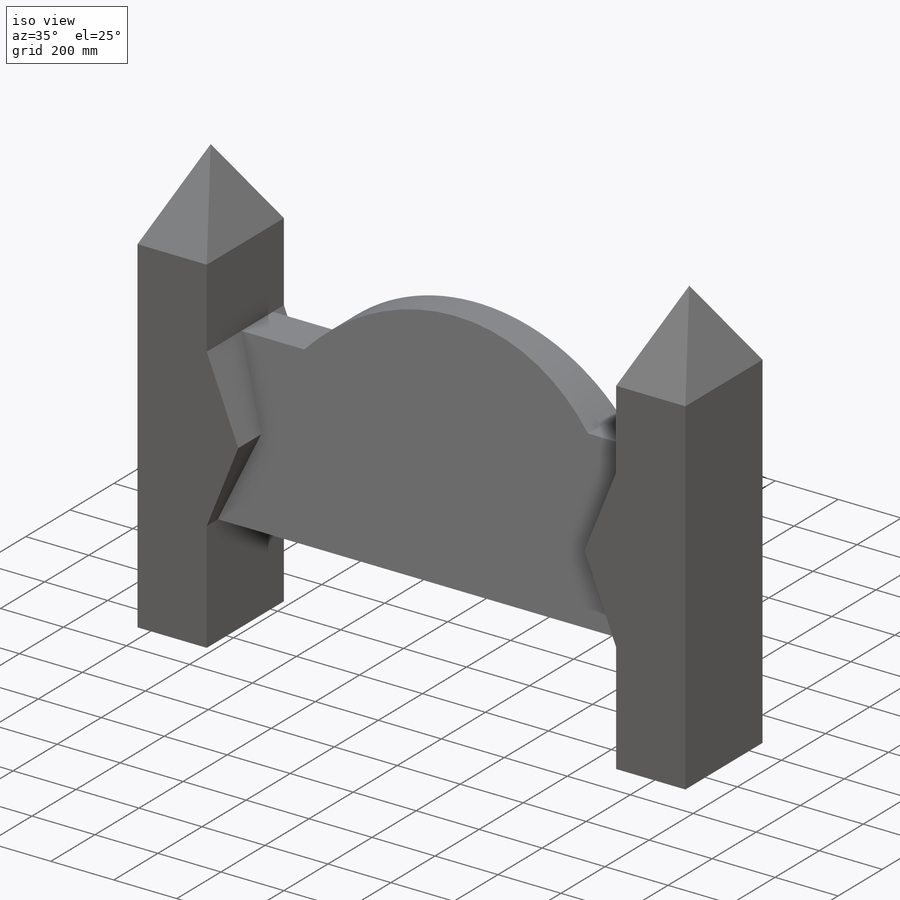
[diagram: iso view]
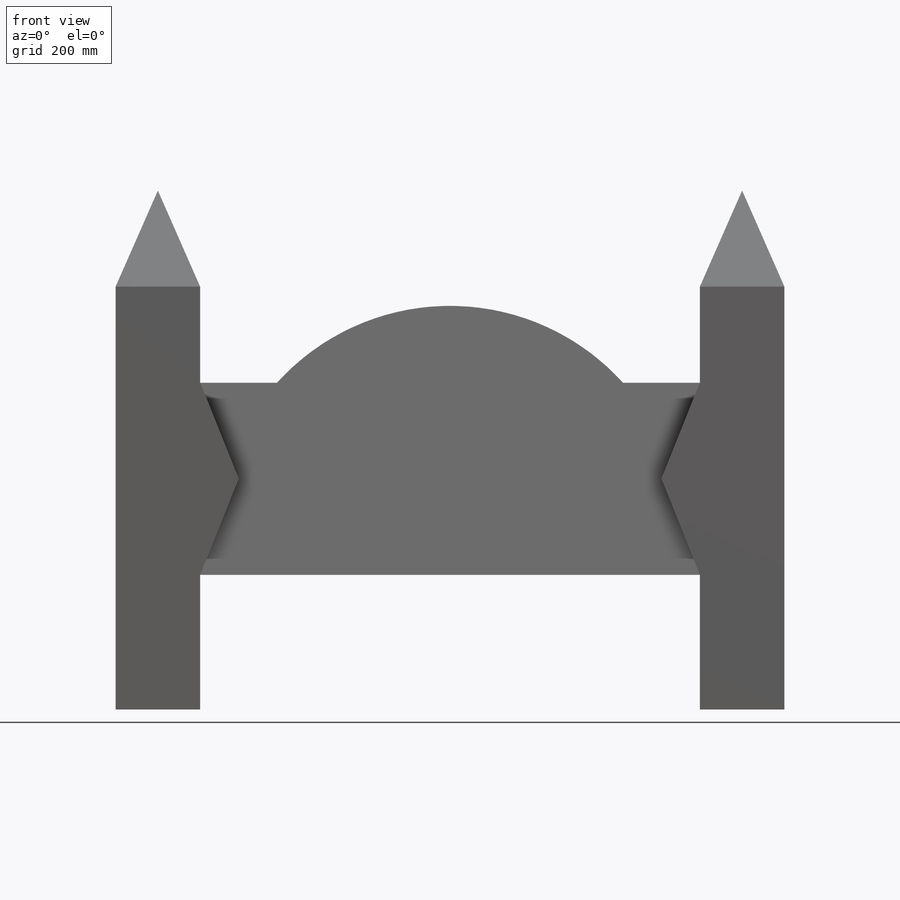
[diagram: front view]
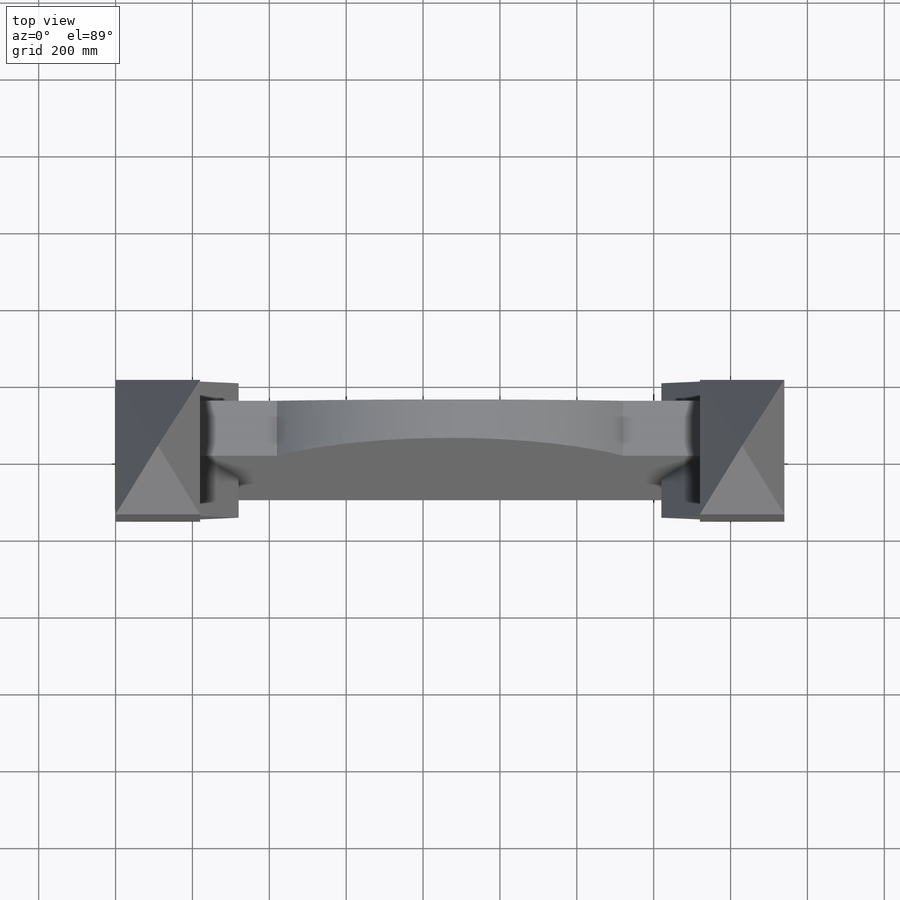
[diagram: top view]
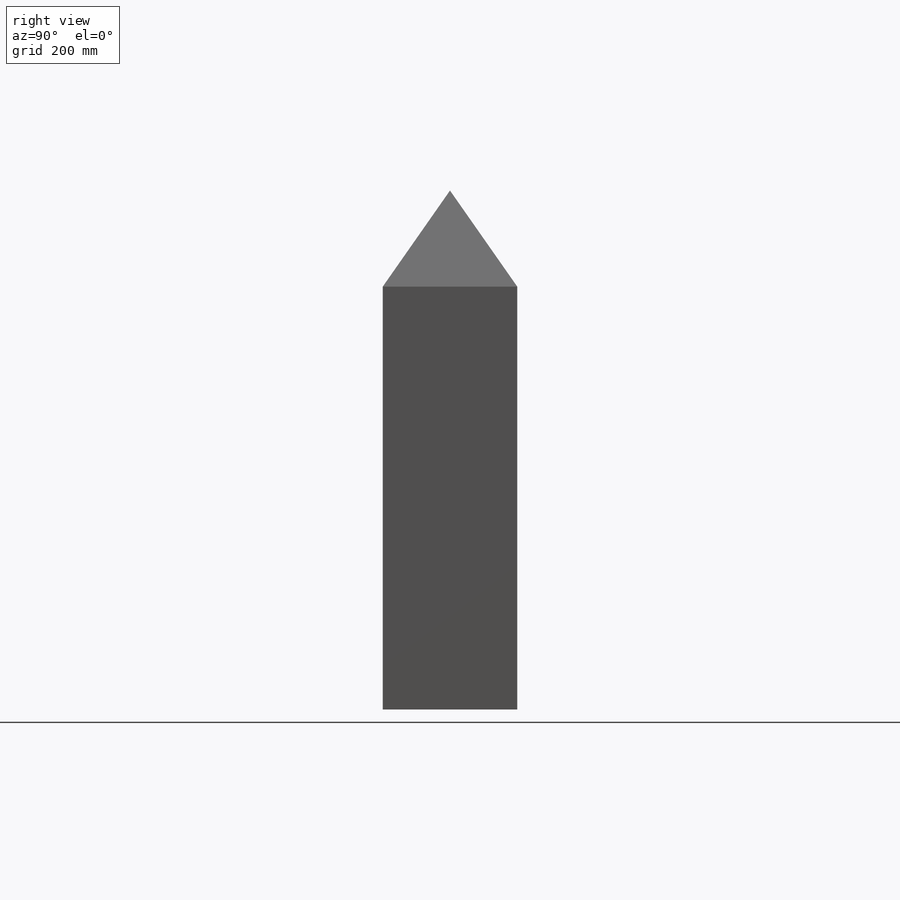
[diagram: right view]
SOLIDWORKS PART (.sldprt)
format: sldprt  version: not decoded by parser v0  size: 335,872 bytes
history: native  units: mm
features: sketch x7, extrude x3, material x1, plane x1, cut_extrude x1 (+14 scaffold rows collapsed)
feature tree (27):
  scaffold x14  (default folders/planes/origin — collapsed)
  material  "Material <not specified>"
  sketch  "Sketch1"  dims[D1=220.0mm D2=1100.0mm D3=450.0mm]
  extrude  "Extrude1"  Depth=350mm
  sketch  "Sketch2"  dims[c1.D1=200.0mm c1.D2=50.0mm c1.D3=50.0mm c1.D4=350.0mm c2.D3=50.0mm c2.D5=100.0mm c2.D1=200.0mm]
  extrude  "Extrude2"  Depth=1300mm
  sketch  "Sketch3"
  plane  "Plane1"  Offset=175mm
  sketch  "Sketch4"
  sketch  "Sketch5"  dims[D1=250.0mm]
  sketch  "Sketch6"  dims[D1=250.0mm]
  extrude  "Loft2"  [1 undecoded]
  sketch  "Sketch7"  dims[D1=200.0mm]
  cut_extrude  "Cut-Extrude1"  [1 undecoded]
decode coverage: 7 of 11 modeling features carry decoded parameters
note: 2 parameter values undecoded
note: suppression state not decoded; provenance and decode notes live in map.json
